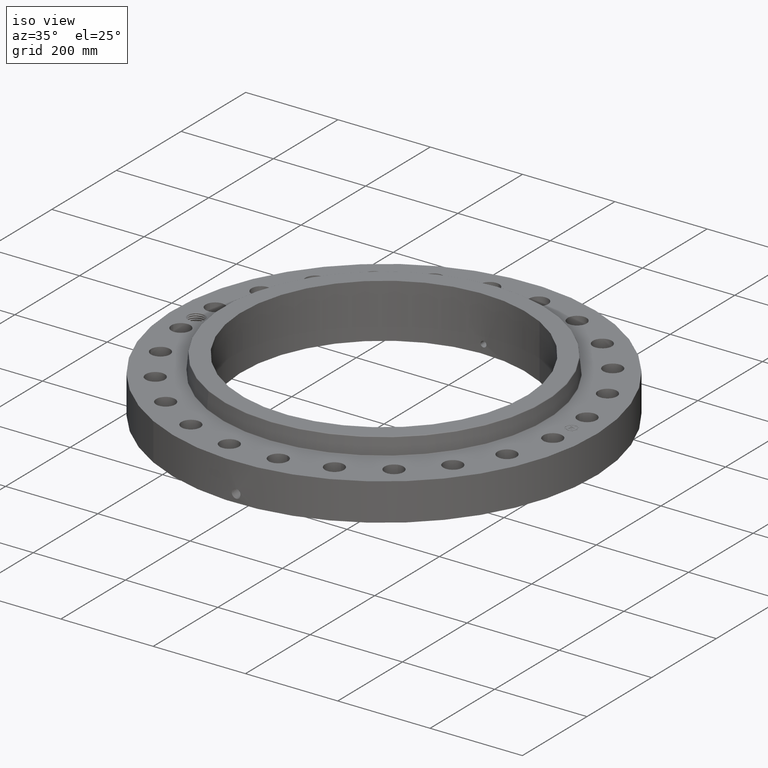
[diagram: clean part render]
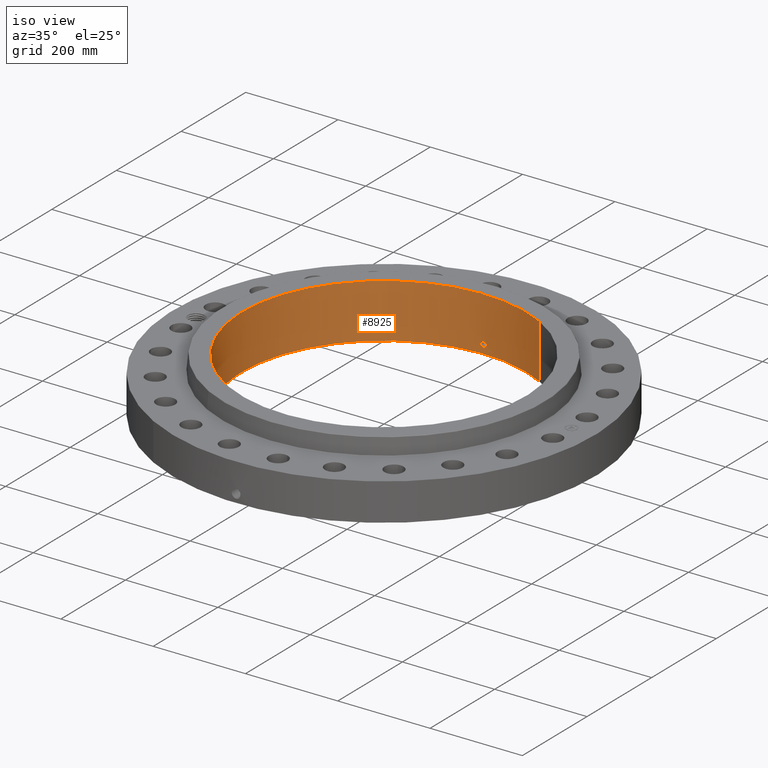
[diagram: same view with one face highlighted and labeled with its STEP entity id]
A machine part, iso view. The second image highlights one B-rep face of the part: STEP entity #8925.
In plain terms, the highlighted cylindrical surface (partial cylindrical patch) has radius 307.975 mm, axis along (0, 0, -1).
Its self-contained STEP definition (entity closure, byte-faithful):
#5282=AXIS2_PLACEMENT_3D('Circle Axis2P3D',#5280,#5281,$) ;
#8802=AXIS2_PLACEMENT_3D('Cylinder Axis2P3D',#8799,#8800,#8801) ;
#8874=AXIS2_PLACEMENT_3D('Circle Axis2P3D',#8872,#8873,$) ;
#5280=CARTESIAN_POINT('Axis2P3D Location',(0.,0.,4.62800000002)) ;
#5284=CARTESIAN_POINT('Vertex',(-5.8130346556,-10.640688563,4.62800000002)) ;
#5286=CARTESIAN_POINT('Vertex',(5.8130346556,10.640688563,4.62800000002)) ;
#8799=CARTESIAN_POINT('Axis2P3D Location',(0.,7.99652833788E-018,2.31400000001)) ;
#8804=CARTESIAN_POINT('Line Origine',(5.8130346556,10.640688563,2.31400000001)) ;
#8808=CARTESIAN_POINT('Vertex',(5.8130346556,10.640688563,-9.23146074019E-015)) ;
#8815=CARTESIAN_POINT('Vertex',(-5.8130346556,-10.640688563,-9.23146074019E-015)) ;
#8818=CARTESIAN_POINT('Line Origine',(-5.8130346556,-10.640688563,2.31400000001)) ;
#8872=CARTESIAN_POINT('Axis2P3D Location',(0.,7.99652833788E-018,-9.51120197474E-015)) ;
#8884=CARTESIAN_POINT('Control Point',(0.219395640473,12.1230149119,0.869856384655)) ;
#8885=CARTESIAN_POINT('Control Point',(0.194442650336,12.1234664974,0.915532526721)) ;
#8886=CARTESIAN_POINT('Control Point',(0.1576036364,12.1240689671,0.954713726706)) ;
#8887=CARTESIAN_POINT('Control Point',(0.111103791287,12.1246549345,0.983244857983)) ;
#8888=CARTESIAN_POINT('Control Point',(0.0336675310954,12.1251211293,1.00588343004)) ;
#8889=CARTESIAN_POINT('Control Point',(-0.0446778419159,12.1249599855,0.998055445241)) ;
#8890=CARTESIAN_POINT('Control Point',(-0.0703095108212,12.1248348919,0.992041616953)) ;
#8891=CARTESIAN_POINT('Control Point',(-0.143968016998,12.1242821352,0.964205218284)) ;
#8892=CARTESIAN_POINT('Control Point',(-0.203257166377,12.1233799777,0.909482673151)) ;
#8893=CARTESIAN_POINT('Control Point',(-0.232219679725,12.1227883896,0.863237819743)) ;
#8894=CARTESIAN_POINT('Control Point',(-0.255842215649,12.1223022346,0.785093306637)) ;
#8895=CARTESIAN_POINT('Control Point',(-0.248279755236,12.1224577442,0.705734291423)) ;
#8896=CARTESIAN_POINT('Control Point',(-0.242046050555,12.1225877853,0.679176646928)) ;
#8897=CARTESIAN_POINT('Control Point',(-0.232313614878,12.1227811295,0.653789808888)) ;
#8898=CARTESIAN_POINT('Control Point',(-0.219395640474,12.1230149119,0.630143615351)) ;
#8899=CARTESIAN_POINT('Vertex',(0.219395640473,12.1230149119,0.869856384655)) ;
#8901=CARTESIAN_POINT('Vertex',(-0.219395640473,12.1230149119,0.630143615351)) ;
#8905=CARTESIAN_POINT('Control Point',(-0.219395640473,12.1230149119,0.630143615351)) ;
#8906=CARTESIAN_POINT('Control Point',(-0.194442650312,12.1234664974,0.584467473241)) ;
#8907=CARTESIAN_POINT('Control Point',(-0.157603636329,12.1240689671,0.545286273224)) ;
#8908=CARTESIAN_POINT('Control Point',(-0.11110379138,12.1246549345,0.516755142048)) ;
#8909=CARTESIAN_POINT('Control Point',(-0.0336675311589,12.1251211293,0.494116569971)) ;
#8910=CARTESIAN_POINT('Control Point',(0.0446778418823,12.1249599855,0.501944554762)) ;
#8911=CARTESIAN_POINT('Control Point',(0.0703095108655,12.1248348919,0.50795838307)) ;
#8912=CARTESIAN_POINT('Control Point',(0.143968017037,12.1242821352,0.535794781746)) ;
#8913=CARTESIAN_POINT('Control Point',(0.20325716641,12.1233799777,0.590517326888)) ;
#8914=CARTESIAN_POINT('Control Point',(0.232219679718,12.1227883896,0.636762180232)) ;
#8915=CARTESIAN_POINT('Control Point',(0.255842215666,12.1223022346,0.714906693405)) ;
#8916=CARTESIAN_POINT('Control Point',(0.248279755225,12.1224577442,0.794265708687)) ;
#8917=CARTESIAN_POINT('Control Point',(0.24204605059,12.1225877853,0.820823352986)) ;
#8918=CARTESIAN_POINT('Control Point',(0.232313614901,12.1227811295,0.846210191076)) ;
#8919=CARTESIAN_POINT('Control Point',(0.219395640473,12.1230149119,0.869856384655)) ;
#5281=DIRECTION('Axis2P3D Direction',(0.,0.,-0.0393700787402)) ;
#8800=DIRECTION('Axis2P3D Direction',(0.,0.,-0.0393700787402)) ;
#8801=DIRECTION('Axis2P3D XDirection',(-0.0188750212049,-0.0345504945626,0.)) ;
#8805=DIRECTION('Vector Direction',(0.,0.,-0.0393700787402)) ;
#8819=DIRECTION('Vector Direction',(0.,0.,-0.0393700787402)) ;
#8873=DIRECTION('Axis2P3D Direction',(0.,0.,-0.0393700787402)) ;
#8806=VECTOR('Line Direction',#8805,0.0393700787402) ;
#8820=VECTOR('Line Direction',#8819,0.0393700787402) ;
#8878=ORIENTED_EDGE('',*,*,#5288,.F.) ;
#8879=ORIENTED_EDGE('',*,*,#8822,.T.) ;
#8880=ORIENTED_EDGE('',*,*,#8876,.T.) ;
#8881=ORIENTED_EDGE('',*,*,#8810,.F.) ;
#8922=ORIENTED_EDGE('',*,*,#8903,.F.) ;
#8923=ORIENTED_EDGE('',*,*,#8920,.F.) ;
#8924=FACE_BOUND('',#8921,.T.) ;
#8925=ADVANCED_FACE('PartBody',(#8882,#8924),#8803,.F.) ;
#8883=B_SPLINE_CURVE_WITH_KNOTS('',5,(#8884,#8885,#8886,#8887,#8888,#8889,#8890,#8891,#8892,#8893,#8894,#8895,#8896,#8897,#8898),.UNSPECIFIED.,.F.,.U.,(6,3,3,3,6),(0.,9.34838295818,14.023038233,23.3730870573,28.2126742615),.UNSPECIFIED.) ;
#8904=B_SPLINE_CURVE_WITH_KNOTS('',5,(#8905,#8906,#8907,#8908,#8909,#8910,#8911,#8912,#8913,#8914,#8915,#8916,#8917,#8918,#8919),.UNSPECIFIED.,.F.,.U.,(6,3,3,3,6),(0.,9.3483829672,14.0230382384,23.3730870661,28.2126742791),.UNSPECIFIED.) ;
#5283=CIRCLE('generated circle',#5282,12.125) ;
#8875=CIRCLE('generated circle',#8874,12.125) ;
#8803=CYLINDRICAL_SURFACE('generated cylinder',#8802,12.125) ;
#5288=EDGE_CURVE('',#5285,#5287,#5283,.T.) ;
#8810=EDGE_CURVE('',#5287,#8809,#8807,.T.) ;
#8822=EDGE_CURVE('',#5285,#8816,#8821,.T.) ;
#8876=EDGE_CURVE('',#8816,#8809,#8875,.T.) ;
#8903=EDGE_CURVE('',#8900,#8902,#8883,.T.) ;
#8920=EDGE_CURVE('',#8902,#8900,#8904,.T.) ;
#8877=EDGE_LOOP('',(#8878,#8879,#8880,#8881)) ;
#8921=EDGE_LOOP('',(#8922,#8923)) ;
#8882=FACE_OUTER_BOUND('',#8877,.T.) ;
#8807=LINE('Line',#8804,#8806) ;
#8821=LINE('Line',#8818,#8820) ;
#5285=VERTEX_POINT('',#5284) ;
#5287=VERTEX_POINT('',#5286) ;
#8809=VERTEX_POINT('',#8808) ;
#8816=VERTEX_POINT('',#8815) ;
#8900=VERTEX_POINT('',#8899) ;
#8902=VERTEX_POINT('',#8901) ;